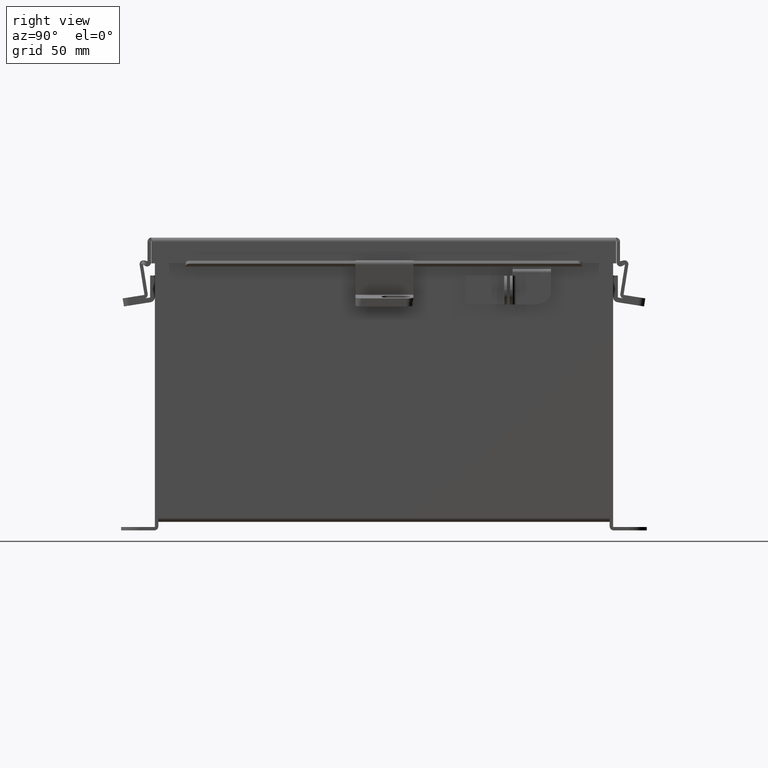
[diagram: clean part render]
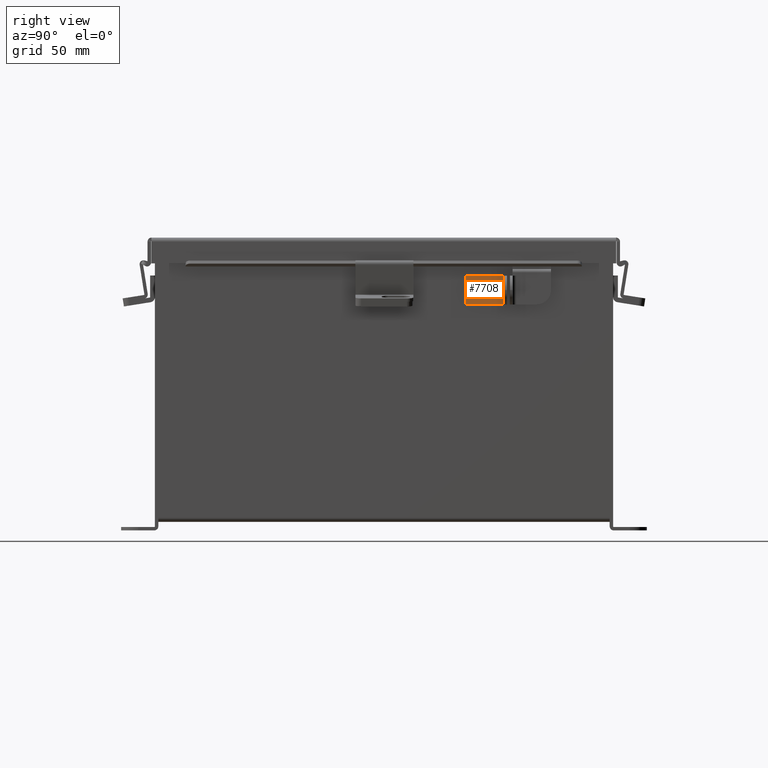
[diagram: same view with one face highlighted and labeled with its STEP entity id]
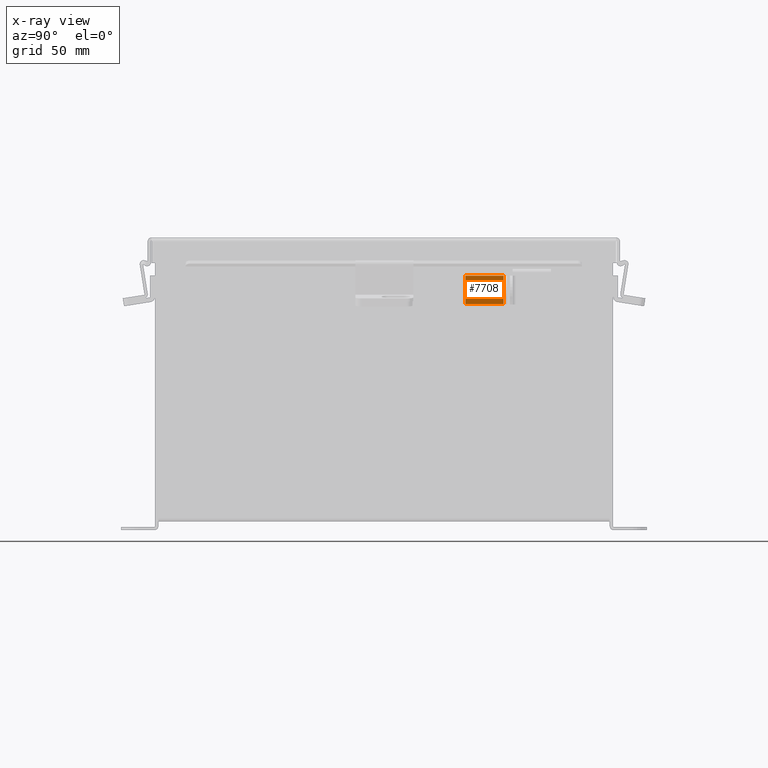
[diagram: x-ray of the same camera — body ghosted, the highlighted face saturated]
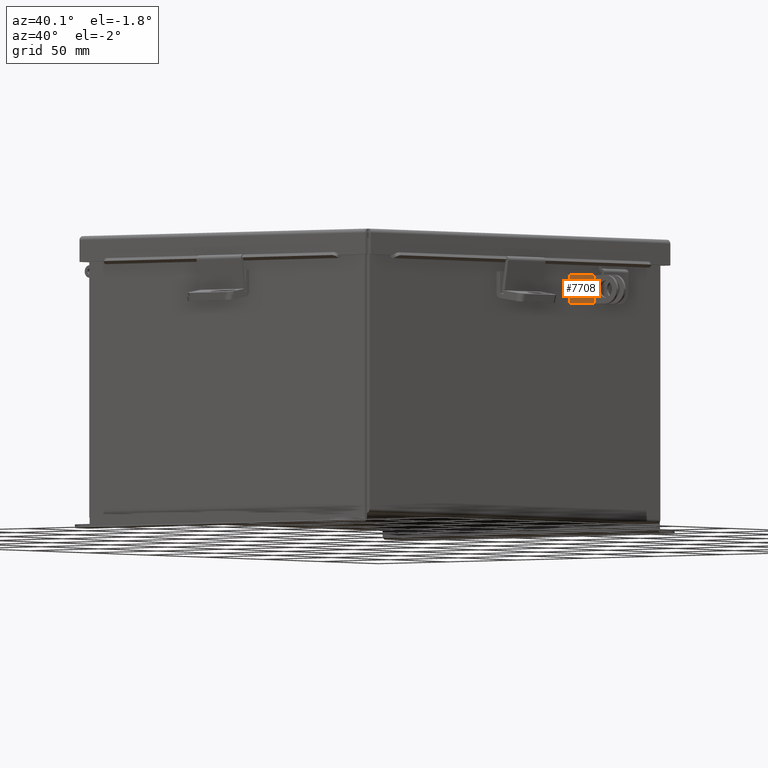
[diagram: same view with one face highlighted and labeled with its STEP entity id]
A machine part, right view. The second image highlights one B-rep face of the part: STEP entity #7708.
The next image is the same camera in x-ray: the body ghosted, the highlighted face saturated — about 0% of this face is hidden behind the body in this view.
A second angle (auxiliary view) of the same face is appended — the face is thin or edge-on in the first view.
In plain terms, the highlighted planar face has unit normal (1, 0, -0).
Its self-contained STEP definition (entity closure, byte-faithful):
#583 = VERTEX_POINT ( 'NONE', #10748 ) ;
#1601 = ORIENTED_EDGE ( 'NONE', *, *, #1706, .F. ) ;
#1706 = EDGE_CURVE ( 'NONE', #583, #4872, #11082, .T. ) ;
#2593 = EDGE_CURVE ( 'NONE', #10293, #4872, #13147, .T. ) ;
#2732 = DIRECTION ( 'NONE',  ( -1.000000000000000000, -0.0000000000000000000, -0.0000000000000000000 ) ) ;
#3393 = CARTESIAN_POINT ( 'NONE',  ( 0.0000000000000000000, 0.0000000000000000000, 0.0000000000000000000 ) ) ;
#3666 = LINE ( 'NONE', #7204, #10054 ) ;
#3702 = VERTEX_POINT ( 'NONE', #4667 ) ;
#4192 = ORIENTED_EDGE ( 'NONE', *, *, #10873, .T. ) ;
#4667 = CARTESIAN_POINT ( 'NONE',  ( 0.6250000000000000000, 0.0000000000000000000, -0.01300000000000000100 ) ) ;
#4703 = VECTOR ( 'NONE', #6249, 39.37007874015748100 ) ;
#4841 = AXIS2_PLACEMENT_3D ( 'NONE', #15181, #8742, #16481 ) ;
#4872 = VERTEX_POINT ( 'NONE', #15739 ) ;
#6249 = DIRECTION ( 'NONE',  ( -1.000000000000000000, -0.0000000000000000000, -0.0000000000000000000 ) ) ;
#6367 = VECTOR ( 'NONE', #2732, 39.37007874015748100 ) ;
#6554 = CARTESIAN_POINT ( 'NONE',  ( 0.6250000000000000000, 0.0000000000000000000, -0.8500000000000000900 ) ) ;
#7204 = CARTESIAN_POINT ( 'NONE',  ( 0.6250000000000000000, 0.0000000000000000000, 0.0000000000000000000 ) ) ;
#7708 = ADVANCED_FACE ( 'NONE', ( #15890 ), #13918, .T. ) ;
#8418 = EDGE_LOOP ( 'NONE', ( #1601, #8979, #4192, #15558 ) ) ;
#8742 = DIRECTION ( 'NONE',  ( -0.0000000000000000000, 1.000000000000000000, 0.0000000000000000000 ) ) ;
#8979 = ORIENTED_EDGE ( 'NONE', *, *, #10009, .F. ) ;
#9801 = DIRECTION ( 'NONE',  ( 0.0000000000000000000, 0.0000000000000000000, -1.000000000000000000 ) ) ;
#10009 = EDGE_CURVE ( 'NONE', #3702, #583, #11462, .T. ) ;
#10054 = VECTOR ( 'NONE', #9801, 39.37007874015748100 ) ;
#10293 = VERTEX_POINT ( 'NONE', #13365 ) ;
#10665 = VECTOR ( 'NONE', #15223, 39.37007874015748100 ) ;
#10748 = CARTESIAN_POINT ( 'NONE',  ( 0.0000000000000000000, 0.0000000000000000000, -0.01300000000000000100 ) ) ;
#10873 = EDGE_CURVE ( 'NONE', #3702, #10293, #3666, .T. ) ;
#11082 = LINE ( 'NONE', #3393, #10665 ) ;
#11462 = LINE ( 'NONE', #15204, #4703 ) ;
#13147 = LINE ( 'NONE', #6554, #6367 ) ;
#13365 = CARTESIAN_POINT ( 'NONE',  ( 0.6250000000000000000, 0.0000000000000000000, -0.8500000000000000900 ) ) ;
#13918 = PLANE ( 'NONE',  #4841 ) ;
#15181 = CARTESIAN_POINT ( 'NONE',  ( 0.6250000000000000000, 0.0000000000000000000, 0.0000000000000000000 ) ) ;
#15204 = CARTESIAN_POINT ( 'NONE',  ( 0.6250000000000000000, 0.0000000000000000000, -0.01300000000000000100 ) ) ;
#15223 = DIRECTION ( 'NONE',  ( 0.0000000000000000000, 0.0000000000000000000, -1.000000000000000000 ) ) ;
#15558 = ORIENTED_EDGE ( 'NONE', *, *, #2593, .T. ) ;
#15739 = CARTESIAN_POINT ( 'NONE',  ( 0.0000000000000000000, 0.0000000000000000000, -0.8500000000000000900 ) ) ;
#15890 = FACE_OUTER_BOUND ( 'NONE', #8418, .T. ) ;
#16481 = DIRECTION ( 'NONE',  ( 0.0000000000000000000, -0.0000000000000000000, 1.000000000000000000 ) ) ;